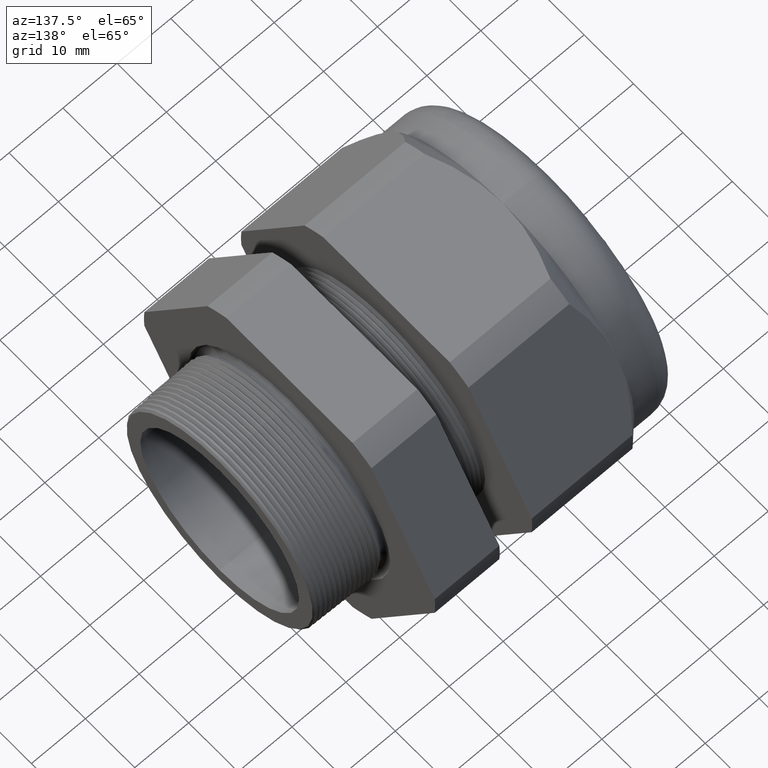
[diagram: clean part render]
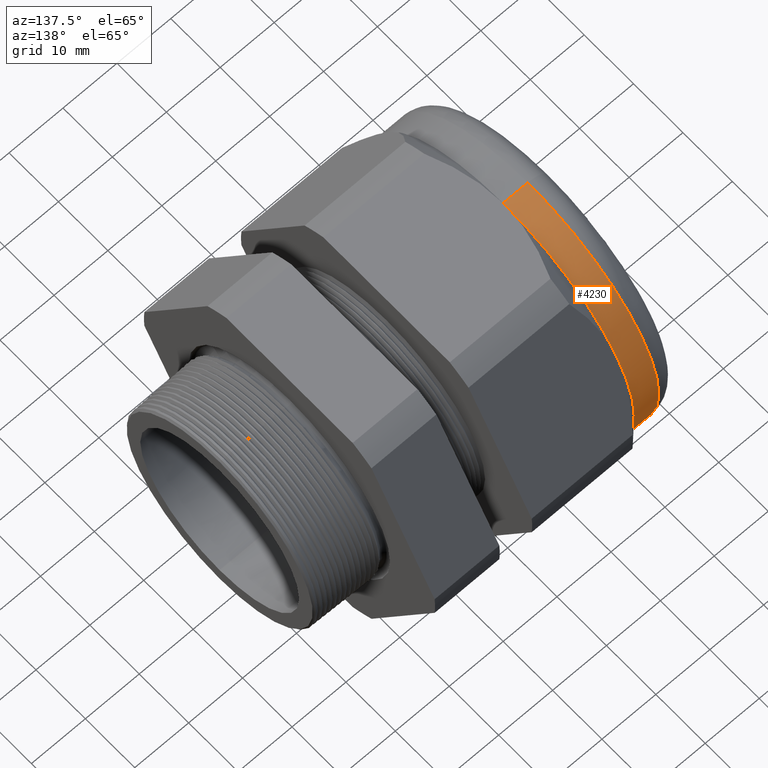
[diagram: same view with one face highlighted and labeled with its STEP entity id]
A machine part, auxiliary view. The second image highlights one B-rep face of the part: STEP entity #4230.
In plain terms, the highlighted cylindrical surface (partial cylindrical patch) has radius 26.543 mm, axis along (1, 0, 0).
Its self-contained STEP definition (entity closure, byte-faithful):
#1773 = LINE ( 'NONE', #1830, #1829 ) ;
#1802 = DIRECTION ( 'NONE',  ( 1.000000000000000000, 0.0000000000000000000, 0.0000000000000000000 ) ) ;
#1803 = VECTOR ( 'NONE', #1802, 39.37007874015748100 ) ;
#1804 = CARTESIAN_POINT ( 'NONE',  ( 0.0000000000000000000, 1.279755905108984100E-016, 1.044999999999999900 ) ) ;
#1805 = LINE ( 'NONE', #1804, #1803 ) ;
#1806 = CARTESIAN_POINT ( 'NONE',  ( -1.869292000000000000, 0.0000000000000000000, 1.044999999999999900 ) ) ;
#1808 = DIRECTION ( 'NONE',  ( 0.0000000000000000000, 0.0000000000000000000, -1.000000000000000000 ) ) ;
#1809 = DIRECTION ( 'NONE',  ( 1.000000000000000000, 0.0000000000000000000, 0.0000000000000000000 ) ) ;
#1810 = AXIS2_PLACEMENT_3D ( 'NONE', #1817, #1809, #1808 ) ;
#1811 = CIRCLE ( 'NONE', #1810, 1.044999999999999700 ) ;
#1812 = DIRECTION ( 'NONE',  ( 0.0000000000000000000, 0.0000000000000000000, -1.000000000000000000 ) ) ;
#1813 = DIRECTION ( 'NONE',  ( 1.000000000000000000, 0.0000000000000000000, 0.0000000000000000000 ) ) ;
#1814 = CARTESIAN_POINT ( 'NONE',  ( -1.869292000000000000, 0.0000000000000000000, 0.0000000000000000000 ) ) ;
#1815 = AXIS2_PLACEMENT_3D ( 'NONE', #1814, #1813, #1812 ) ;
#1816 = CIRCLE ( 'NONE', #1815, 1.044999999999999700 ) ;
#1817 = CARTESIAN_POINT ( 'NONE',  ( -1.869292000000000000, 0.0000000000000000000, 0.0000000000000000000 ) ) ;
#1818 = CARTESIAN_POINT ( 'NONE',  ( -1.869292000000000000, 0.9049965469547380800, 0.5224999999999996300 ) ) ;
#1820 = CARTESIAN_POINT ( 'NONE',  ( -1.869292000000000000, 0.9049965469547385200, -0.5224999999999998500 ) ) ;
#1822 = DIRECTION ( 'NONE',  ( 0.0000000000000000000, 0.0000000000000000000, -1.000000000000000000 ) ) ;
#1823 = DIRECTION ( 'NONE',  ( 1.000000000000000000, 0.0000000000000000000, 0.0000000000000000000 ) ) ;
#1824 = CARTESIAN_POINT ( 'NONE',  ( -1.869292000000000000, 0.0000000000000000000, 0.0000000000000000000 ) ) ;
#1825 = AXIS2_PLACEMENT_3D ( 'NONE', #1824, #1823, #1822 ) ;
#1826 = CIRCLE ( 'NONE', #1825, 1.044999999999999700 ) ;
#1827 = CARTESIAN_POINT ( 'NONE',  ( -1.869292000000000000, 0.0000000000000000000, -1.044999999999999900 ) ) ;
#1828 = DIRECTION ( 'NONE',  ( 1.000000000000000000, 0.0000000000000000000, 0.0000000000000000000 ) ) ;
#1829 = VECTOR ( 'NONE', #1828, 39.37007874015748100 ) ;
#1830 = CARTESIAN_POINT ( 'NONE',  ( 0.0000000000000000000, 0.0000000000000000000, -1.044999999999999900 ) ) ;
#2226 = DIRECTION ( 'NONE',  ( 0.0000000000000000000, 0.0000000000000000000, -1.000000000000000000 ) ) ;
#2227 = DIRECTION ( 'NONE',  ( 1.000000000000000000, 0.0000000000000000000, 0.0000000000000000000 ) ) ;
#2228 = CARTESIAN_POINT ( 'NONE',  ( 0.0000000000000000000, 0.0000000000000000000, 0.0000000000000000000 ) ) ;
#2229 = AXIS2_PLACEMENT_3D ( 'NONE', #2228, #2227, #2226 ) ;
#2231 = CYLINDRICAL_SURFACE ( 'NONE', #2229, 1.044999999999999900 ) ;
#2232 = FACE_OUTER_BOUND ( 'NONE', #4216, .T. ) ;
#2485 = CARTESIAN_POINT ( 'NONE',  ( -2.049999999999999800, 1.279755905108984100E-016, 1.044999999999999900 ) ) ;
#2499 = CARTESIAN_POINT ( 'NONE',  ( -2.049999999999999800, 0.0000000000000000000, -1.044999999999999900 ) ) ;
#2500 = DIRECTION ( 'NONE',  ( 0.0000000000000000000, 0.0000000000000000000, 1.000000000000000000 ) ) ;
#2501 = DIRECTION ( 'NONE',  ( 1.000000000000000000, 0.0000000000000000000, 0.0000000000000000000 ) ) ;
#2502 = CARTESIAN_POINT ( 'NONE',  ( -2.049999999999999800, 0.0000000000000000000, 0.0000000000000000000 ) ) ;
#2503 = AXIS2_PLACEMENT_3D ( 'NONE', #2502, #2501, #2500 ) ;
#2504 = CIRCLE ( 'NONE', #2503, 1.044999999999999900 ) ;
#3976 = ORIENTED_EDGE ( 'NONE', *, *, #3977, .F. ) ;
#3977 = EDGE_CURVE ( 'NONE', #4390, #3978, #1773, .T. ) ;
#3978 = VERTEX_POINT ( 'NONE', #1827 ) ;
#3979 = EDGE_CURVE ( 'NONE', #3978, #3983, #1826, .T. ) ;
#3982 = ORIENTED_EDGE ( 'NONE', *, *, #3979, .F. ) ;
#3983 = VERTEX_POINT ( 'NONE', #1820 ) ;
#3984 = ORIENTED_EDGE ( 'NONE', *, *, #3988, .F. ) ;
#3986 = VERTEX_POINT ( 'NONE', #1818 ) ;
#3987 = ORIENTED_EDGE ( 'NONE', *, *, #3991, .F. ) ;
#3988 = EDGE_CURVE ( 'NONE', #3983, #3986, #1816, .T. ) ;
#3991 = EDGE_CURVE ( 'NONE', #3986, #3993, #1811, .T. ) ;
#3993 = VERTEX_POINT ( 'NONE', #1806 ) ;
#3994 = EDGE_CURVE ( 'NONE', #4368, #3993, #1805, .T. ) ;
#3996 = ORIENTED_EDGE ( 'NONE', *, *, #3994, .T. ) ;
#4216 = EDGE_LOOP ( 'NONE', ( #4220, #3996, #3987, #3984, #3982, #3976 ) ) ;
#4220 = ORIENTED_EDGE ( 'NONE', *, *, #4389, .T. ) ;
#4230 = ADVANCED_FACE ( 'NONE', ( #2232 ), #2231, .T. ) ;
#4368 = VERTEX_POINT ( 'NONE', #2485 ) ;
#4389 = EDGE_CURVE ( 'NONE', #4390, #4368, #2504, .T. ) ;
#4390 = VERTEX_POINT ( 'NONE', #2499 ) ;